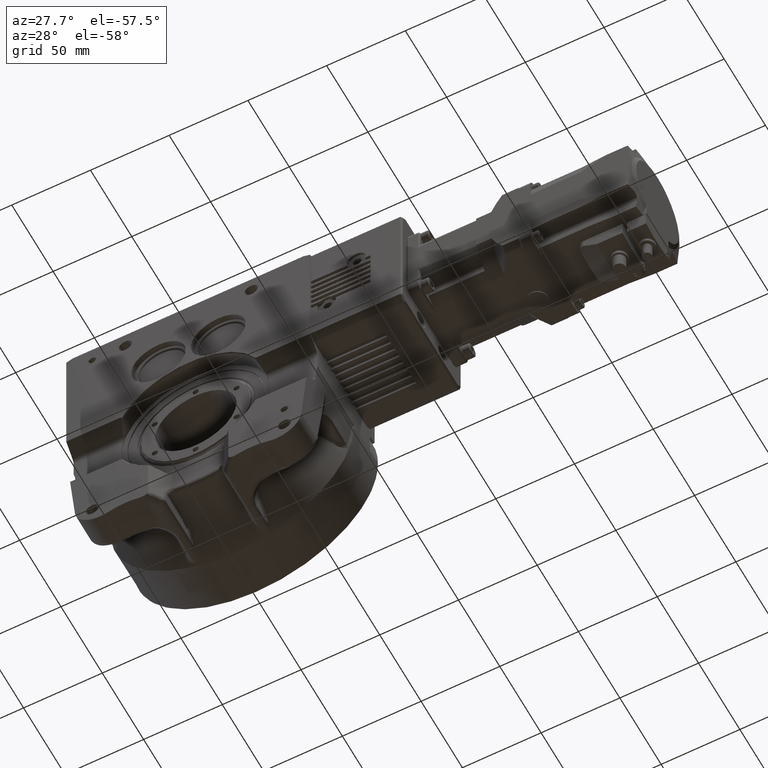
[diagram: clean part render]
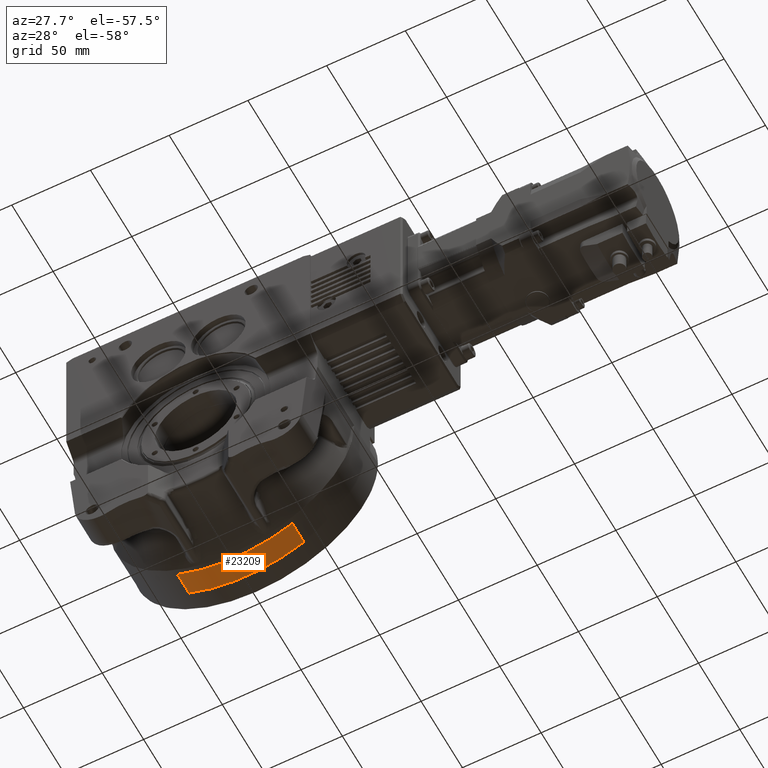
[diagram: same view with one face highlighted and labeled with its STEP entity id]
A machine part, auxiliary view. The second image highlights one B-rep face of the part: STEP entity #23209.
In plain terms, the highlighted cylindrical surface (partial cylindrical patch) has radius 77.55 mm, axis along (0, -1, -0).
Its self-contained STEP definition (entity closure, byte-faithful):
#2954 = ORIENTED_EDGE ( 'NONE', *, *, #52385, .T. ) ;
#4877 = DIRECTION ( 'NONE',  ( -6.000301407421399798E-33, 1.000000000000000000, 5.404591036514739465E-17 ) ) ;
#8095 = CARTESIAN_POINT ( 'NONE',  ( -4.320346838191844682E-15, 34.00000000000000000, 1.080918207302964040E-16 ) ) ;
#8103 = VECTOR ( 'NONE', #62581, 1000.000000000000000 ) ;
#8431 = DIRECTION ( 'NONE',  ( -1.000000000000000000, 0.000000000000000000, -1.110223024625155924E-16 ) ) ;
#12295 = CARTESIAN_POINT ( 'NONE',  ( -36.52697138856535020, 20.00000000000000000, -68.40893845967009668 ) ) ;
#14180 = VERTEX_POINT ( 'NONE', #73538 ) ;
#19970 = DIRECTION ( 'NONE',  ( -1.110223024625155924E-16, -8.947638818706936180E-17, 1.000000000000000000 ) ) ;
#20309 = CARTESIAN_POINT ( 'NONE',  ( -4.320346838191844682E-15, 34.00000000000000000, 1.080918207302964040E-16 ) ) ;
#21073 = CIRCLE ( 'NONE', #32931, 77.54999999999999716 ) ;
#22586 = ORIENTED_EDGE ( 'NONE', *, *, #41770, .F. ) ;
#23209 = ADVANCED_FACE ( 'NONE', ( #56169 ), #24921, .T. ) ;
#24921 = CYLINDRICAL_SURFACE ( 'NONE', #60349, 77.54999999999999716 ) ;
#32931 = AXIS2_PLACEMENT_3D ( 'NONE', #36082, #4877, #61555 ) ;
#35163 = VERTEX_POINT ( 'NONE', #12295 ) ;
#36082 = CARTESIAN_POINT ( 'NONE',  ( -4.161381573595080043E-15, 20.00000000000000000, -6.485509243817680208E-16 ) ) ;
#37310 = CARTESIAN_POINT ( 'NONE',  ( -36.52697138856535020, 34.00000000000000000, -68.40893845967009668 ) ) ;
#38121 = ORIENTED_EDGE ( 'NONE', *, *, #52844, .T. ) ;
#41770 = EDGE_CURVE ( 'NONE', #14180, #35163, #69341, .T. ) ;
#43885 = DIRECTION ( 'NONE',  ( 1.135466175691145993E-17, -1.000000000000000000, -5.404591036514739465E-17 ) ) ;
#46109 = VECTOR ( 'NONE', #43885, 1000.000000000000000 ) ;
#47419 = EDGE_CURVE ( 'NONE', #69744, #14180, #54737, .T. ) ;
#50800 = AXIS2_PLACEMENT_3D ( 'NONE', #20309, #59359, #8431 ) ;
#52385 = EDGE_CURVE ( 'NONE', #70063, #35163, #21073, .T. ) ;
#52844 = EDGE_CURVE ( 'NONE', #69744, #70063, #80275, .T. ) ;
#54737 = CIRCLE ( 'NONE', #50800, 77.54999999999999716 ) ;
#55084 = ORIENTED_EDGE ( 'NONE', *, *, #47419, .F. ) ;
#56169 = FACE_OUTER_BOUND ( 'NONE', #66021, .T. ) ;
#59359 = DIRECTION ( 'NONE',  ( -6.000301407421399798E-33, 1.000000000000000000, 5.404591036514739465E-17 ) ) ;
#60349 = AXIS2_PLACEMENT_3D ( 'NONE', #8095, #76286, #19970 ) ;
#61555 = DIRECTION ( 'NONE',  ( -1.000000000000000000, 0.000000000000000000, -1.110223024625155924E-16 ) ) ;
#62581 = DIRECTION ( 'NONE',  ( 1.135466175691145993E-17, -1.000000000000000000, -5.404591036514739465E-17 ) ) ;
#66021 = EDGE_LOOP ( 'NONE', ( #2954, #22586, #55084, #38121 ) ) ;
#67524 = CARTESIAN_POINT ( 'NONE',  ( 36.52697138856535020, 34.00000000000000000, -68.40893845967009668 ) ) ;
#68759 = CARTESIAN_POINT ( 'NONE',  ( 36.52697138856535020, 34.00000000000000000, -68.40893845967009668 ) ) ;
#69341 = LINE ( 'NONE', #37310, #46109 ) ;
#69744 = VERTEX_POINT ( 'NONE', #67524 ) ;
#70063 = VERTEX_POINT ( 'NONE', #80995 ) ;
#73538 = CARTESIAN_POINT ( 'NONE',  ( -36.52697138856535020, 34.00000000000000000, -68.40893845967009668 ) ) ;
#76286 = DIRECTION ( 'NONE',  ( 1.135466175691147996E-17, -1.000000000000000000, -8.947638818706939878E-17 ) ) ;
#80275 = LINE ( 'NONE', #68759, #8103 ) ;
#80995 = CARTESIAN_POINT ( 'NONE',  ( 36.52697138856535020, 20.00000000000000000, -68.40893845967009668 ) ) ;